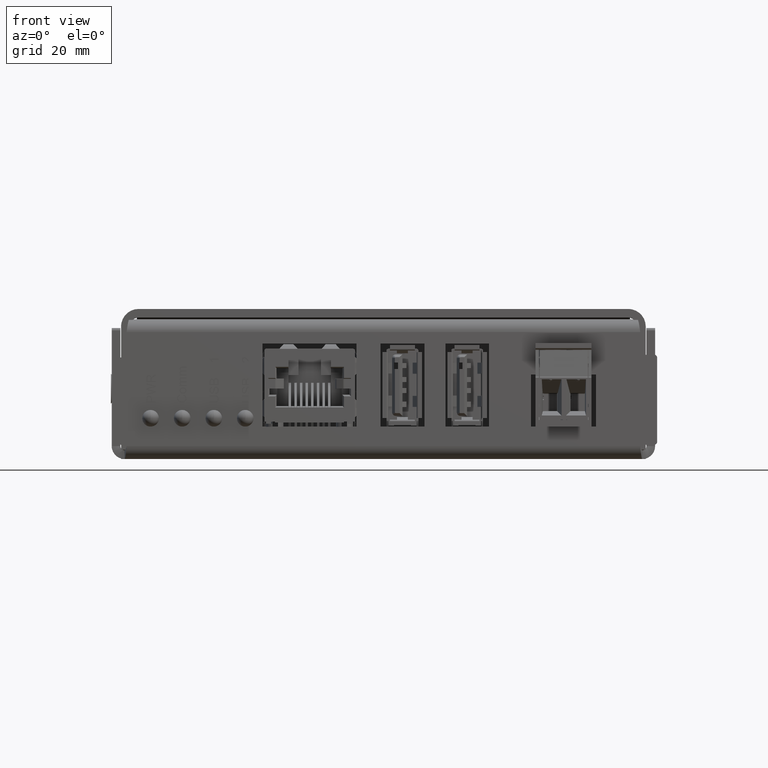
[diagram: clean part render]
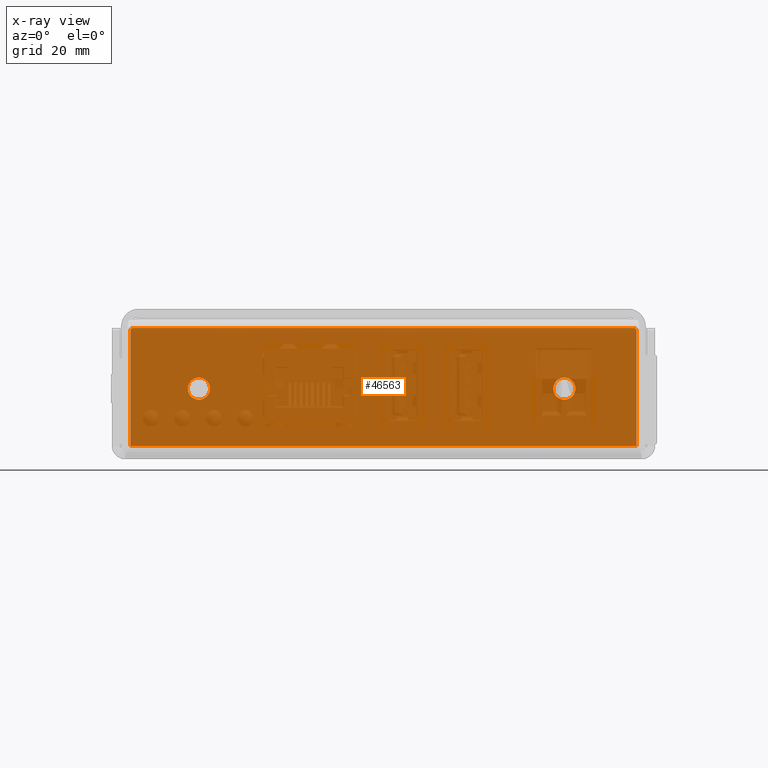
[diagram: x-ray — body ghosted, one internal face saturated and labeled with its STEP entity id]
A machine part, front view, then the same camera in x-ray: the body is ghosted and one INTERNAL B-rep face — a face not visible from any outside direction — is saturated and labeled: STEP entity #46563.
In plain terms, the highlighted planar face has unit normal (0, 1, -0).
Its self-contained STEP definition (entity closure, byte-faithful):
#514=FACE_BOUND('',#6747,.T.);
#515=FACE_BOUND('',#6748,.T.);
#861=PLANE('',#48912);
#4149=FACE_OUTER_BOUND('',#6746,.T.);
#6746=EDGE_LOOP('',(#34283,#34284,#34285,#34286,#34287,#34288));
#6747=EDGE_LOOP('',(#34289));
#6748=EDGE_LOOP('',(#34290));
#9644=LINE('',#70263,#14789);
#9650=LINE('',#70279,#14795);
#9728=LINE('',#70600,#14873);
#9730=LINE('',#70607,#14875);
#14789=VECTOR('',#52814,0.393700787401575);
#14795=VECTOR('',#52830,0.393700787401575);
#14873=VECTOR('',#53056,0.393700787401575);
#14875=VECTOR('',#53064,0.061);
#19286=CIRCLE('',#48656,0.078740157480315);
#19288=CIRCLE('',#48659,0.078740157480315);
#19316=CIRCLE('',#48822,0.02);
#19319=CIRCLE('',#48828,0.02);
#20215=VERTEX_POINT('',#63308);
#20217=VERTEX_POINT('',#63314);
#21039=VERTEX_POINT('',#70250);
#21040=VERTEX_POINT('',#70251);
#21044=VERTEX_POINT('',#70261);
#21048=VERTEX_POINT('',#70273);
#21049=VERTEX_POINT('',#70277);
#21082=VERTEX_POINT('',#70599);
#24652=EDGE_CURVE('',#20215,#20215,#19286,.T.);
#24655=EDGE_CURVE('',#20217,#20217,#19288,.T.);
#25854=EDGE_CURVE('',#21039,#21040,#19316,.T.);
#25860=EDGE_CURVE('',#21039,#21044,#9644,.T.);
#25865=EDGE_CURVE('',#21048,#21044,#19319,.T.);
#25868=EDGE_CURVE('',#21048,#21049,#9650,.T.);
#25966=EDGE_CURVE('',#21049,#21082,#9728,.T.);
#25970=EDGE_CURVE('',#21082,#21040,#9730,.T.);
#34283=ORIENTED_EDGE('',*,*,#25854,.F.);
#34284=ORIENTED_EDGE('',*,*,#25860,.T.);
#34285=ORIENTED_EDGE('',*,*,#25865,.F.);
#34286=ORIENTED_EDGE('',*,*,#25868,.T.);
#34287=ORIENTED_EDGE('',*,*,#25966,.T.);
#34288=ORIENTED_EDGE('',*,*,#25970,.T.);
#34289=ORIENTED_EDGE('',*,*,#24652,.T.);
#34290=ORIENTED_EDGE('',*,*,#24655,.T.);
#46563=ADVANCED_FACE('',(#4149,#514,#515),#861,.T.);
#48656=AXIS2_PLACEMENT_3D('',#63309,#51828,#51829);
#48659=AXIS2_PLACEMENT_3D('',#63315,#51835,#51836);
#48822=AXIS2_PLACEMENT_3D('',#70252,#52804,#52805);
#48828=AXIS2_PLACEMENT_3D('',#70274,#52824,#52825);
#48912=AXIS2_PLACEMENT_3D('',#70619,#53079,#53080);
#51828=DIRECTION('center_axis',(0.,-1.,1.83758917935762E-15));
#51829=DIRECTION('ref_axis',(-1.,0.,2.5720708943665E-50));
#51835=DIRECTION('center_axis',(0.,-1.,1.83758917935762E-15));
#51836=DIRECTION('ref_axis',(-1.,0.,-2.48692270660242E-50));
#52804=DIRECTION('center_axis',(0.,-1.,1.83758917935762E-15));
#52805=DIRECTION('ref_axis',(-0.707106781186554,0.,0.707106781186541));
#52814=DIRECTION('',(1.,0.,0.));
#52824=DIRECTION('center_axis',(0.,-1.,1.83758917935762E-15));
#52825=DIRECTION('ref_axis',(0.707106781186535,0.,0.70710678118656));
#52830=DIRECTION('',(0.,-1.83758917935762E-15,-1.));
#53056=DIRECTION('',(-1.,0.,0.));
#53064=DIRECTION('',(0.,1.77635683940025E-15,1.));
#53079=DIRECTION('center_axis',(0.,1.,-1.83758917935762E-15));
#53080=DIRECTION('ref_axis',(-1.,0.,0.));
#63308=CARTESIAN_POINT('',(1.36516535433071,0.812,0.5));
#63309=CARTESIAN_POINT('Origin',(1.28642519685039,0.812,0.5));
#63314=CARTESIAN_POINT('',(-1.23325984251968,0.812,0.5));
#63315=CARTESIAN_POINT('Origin',(-1.312,0.812,0.5));
#70250=CARTESIAN_POINT('',(-1.78,0.812000000000001,0.932));
#70251=CARTESIAN_POINT('',(-1.8,0.812000000000001,0.911999999999999));
#70252=CARTESIAN_POINT('Origin',(-1.78,0.812000000000001,0.911999999999999));
#70261=CARTESIAN_POINT('',(1.78,0.812000000000001,0.932));
#70263=CARTESIAN_POINT('',(1.8,0.812000000000001,0.932));
#70273=CARTESIAN_POINT('',(1.8,0.812000000000001,0.911999999999999));
#70274=CARTESIAN_POINT('Origin',(1.78,0.812000000000001,0.911999999999999));
#70277=CARTESIAN_POINT('',(1.8,0.812,0.0919999999999999));
#70279=CARTESIAN_POINT('',(1.8,0.812,0.0919999999999999));
#70599=CARTESIAN_POINT('',(-1.8,0.812,0.0919999999999999));
#70600=CARTESIAN_POINT('',(0.,0.812,0.0919999999999999));
#70607=CARTESIAN_POINT('',(-1.8,0.811999999999999,-0.0996371518689775));
#70619=CARTESIAN_POINT('Origin',(0.,0.812,0.464090712032755));